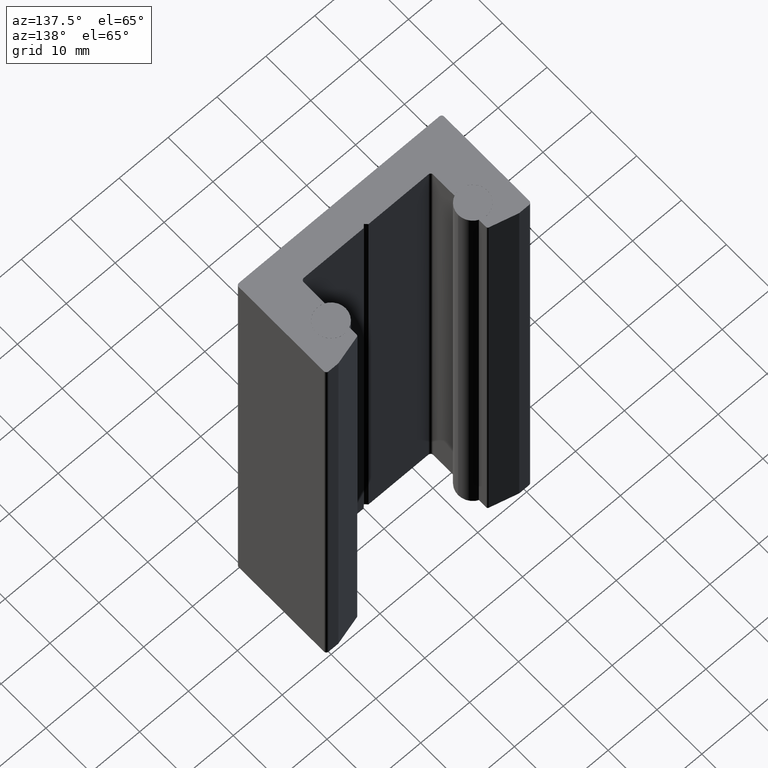
[diagram: clean part render]
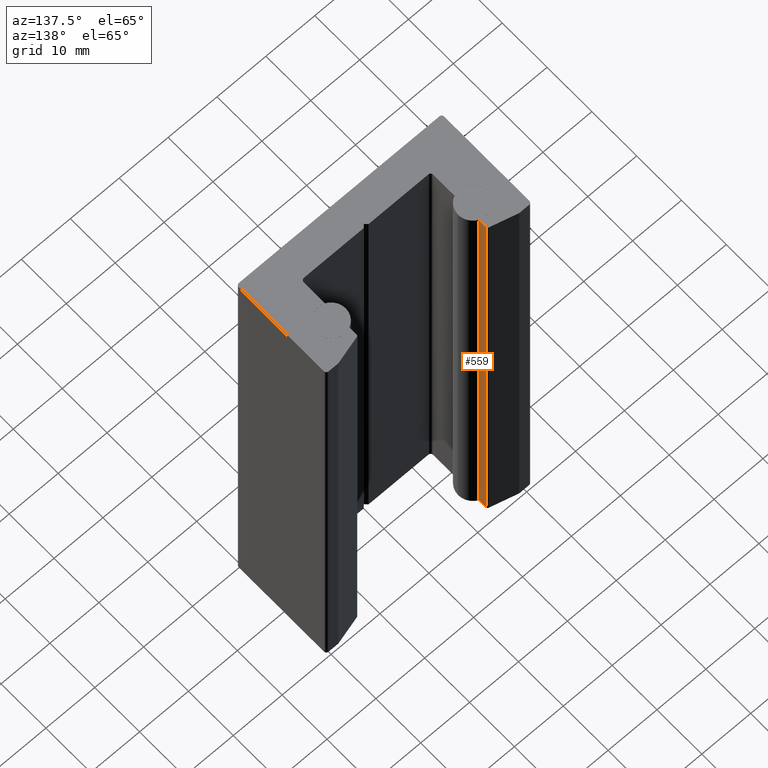
[diagram: same view with one face highlighted and labeled with its STEP entity id]
A machine part, auxiliary view. The second image highlights one B-rep face of the part: STEP entity #559.
In plain terms, the highlighted planar face has unit normal (1, 0, 0).
Its self-contained STEP definition (entity closure, byte-faithful):
#41=PLANE('',#673);
#68=FACE_OUTER_BOUND('',#98,.T.);
#98=EDGE_LOOP('',(#467,#468,#469,#470));
#122=LINE('',#908,#178);
#129=LINE('',#932,#185);
#155=LINE('',#996,#211);
#156=LINE('',#997,#212);
#178=VECTOR('',#729,10.);
#185=VECTOR('',#748,10.);
#211=VECTOR('',#816,10.);
#212=VECTOR('',#817,10.);
#261=VERTEX_POINT('',#905);
#262=VERTEX_POINT('',#907);
#273=VERTEX_POINT('',#930);
#290=VERTEX_POINT('',#995);
#315=EDGE_CURVE('',#262,#261,#122,.T.);
#327=EDGE_CURVE('',#273,#261,#129,.T.);
#359=EDGE_CURVE('',#273,#290,#155,.T.);
#360=EDGE_CURVE('',#262,#290,#156,.T.);
#467=ORIENTED_EDGE('',*,*,#327,.F.);
#468=ORIENTED_EDGE('',*,*,#359,.T.);
#469=ORIENTED_EDGE('',*,*,#360,.F.);
#470=ORIENTED_EDGE('',*,*,#315,.T.);
#559=ADVANCED_FACE('',(#68),#41,.T.);
#673=AXIS2_PLACEMENT_3D('',#994,#814,#815);
#729=DIRECTION('',(-3.56967924847688E-15,1.,0.));
#748=DIRECTION('',(0.,0.,-1.));
#814=DIRECTION('center_axis',(1.,3.56967924847688E-15,0.));
#815=DIRECTION('ref_axis',(0.,0.,-1.));
#816=DIRECTION('',(3.56967924847688E-15,-1.,0.));
#817=DIRECTION('',(0.,0.,1.));
#905=CARTESIAN_POINT('',(-13.25,18.3630686433429,-50.));
#907=CARTESIAN_POINT('',(-13.25,16.7271780286589,-50.));
#908=CARTESIAN_POINT('',(-13.25,16.7271780286589,-50.));
#930=CARTESIAN_POINT('',(-13.25,18.3630686433429,50.));
#932=CARTESIAN_POINT('',(-13.25,18.3630686433429,0.));
#994=CARTESIAN_POINT('Origin',(-13.25,18.5932667397366,0.));
#995=CARTESIAN_POINT('',(-13.25,16.7271780286589,50.));
#996=CARTESIAN_POINT('',(-13.25,16.7271780286589,50.));
#997=CARTESIAN_POINT('',(-13.25,16.7271780286589,0.));